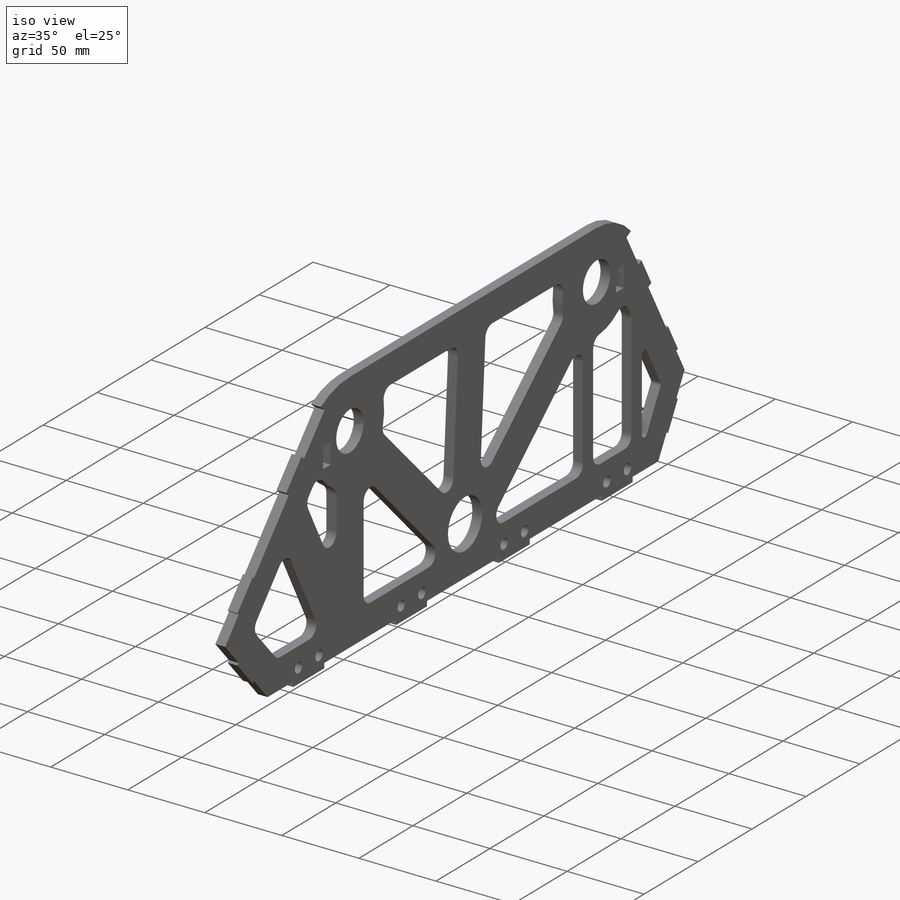
[diagram: iso view]
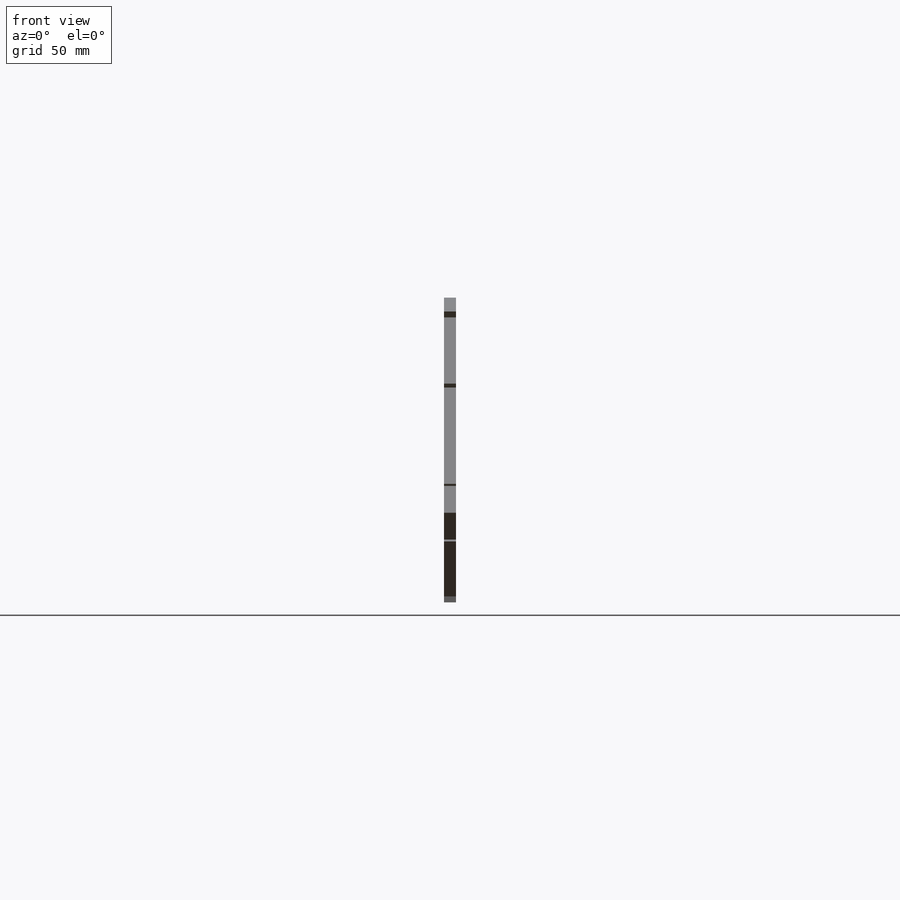
[diagram: front view]
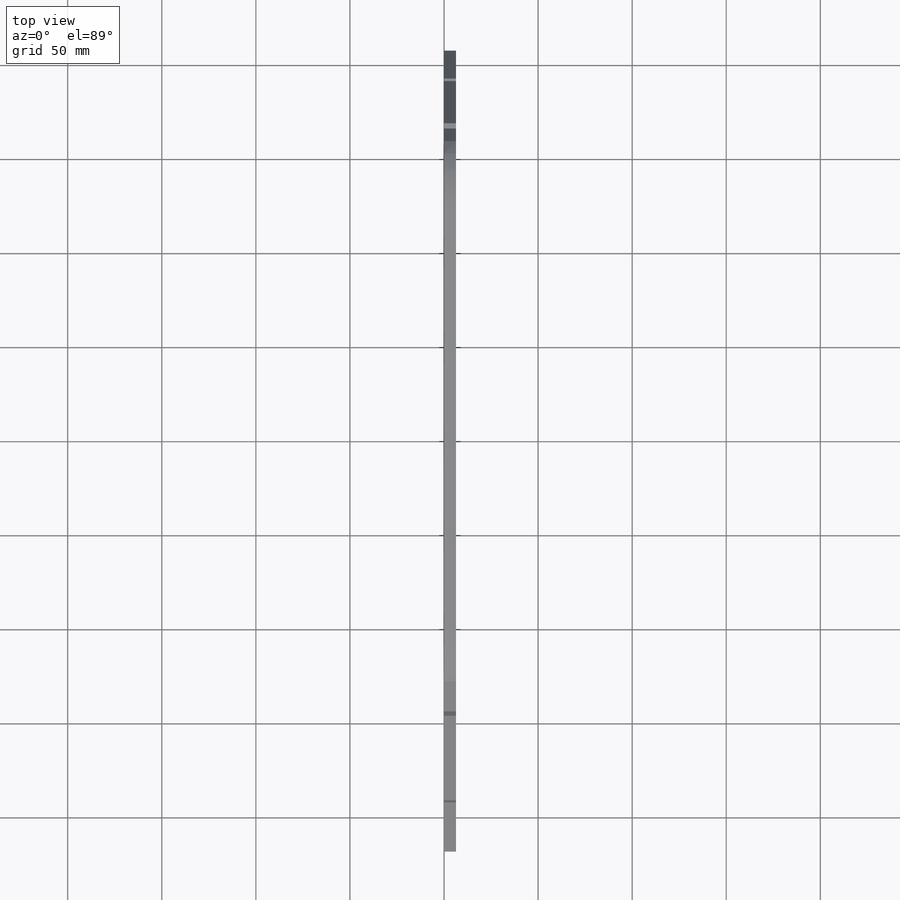
[diagram: top view]
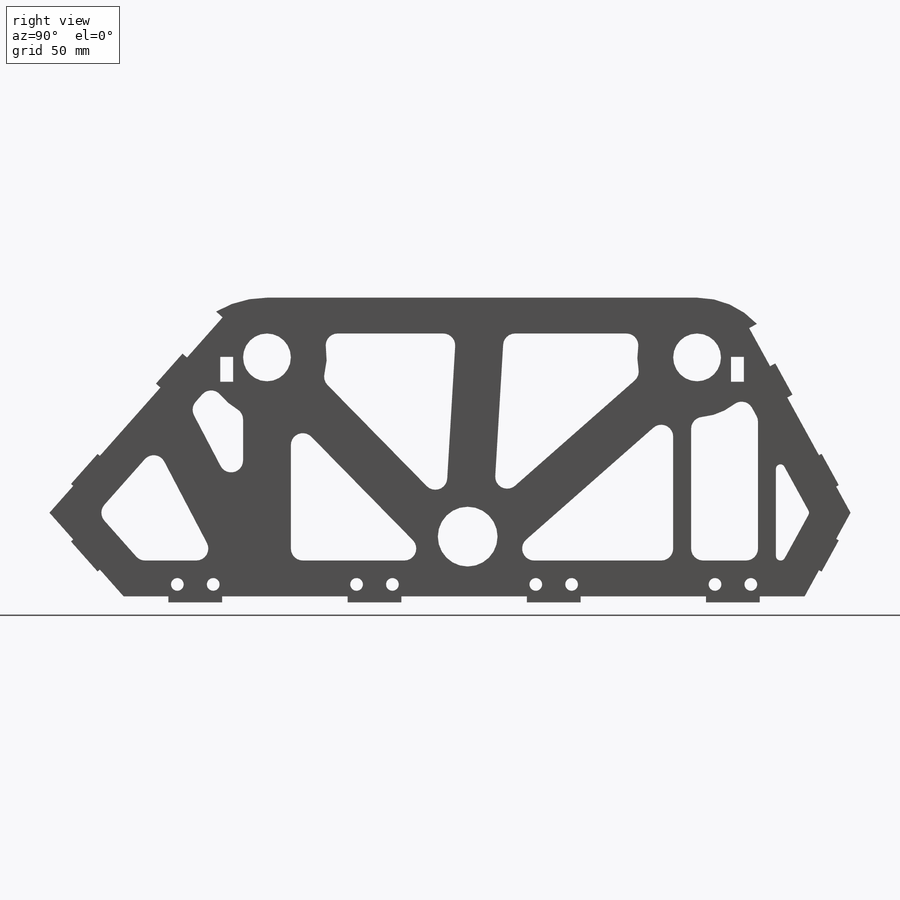
[diagram: right view]
SOLIDWORKS PART (.sldprt)
format: sldprt  version: not decoded by parser v0  size: 906,240 bytes
history: native  units: mm
features: sketch x17, extrude x8, cut_extrude x7, fillet x3, material x1, hole x1 (+13 scaffold rows collapsed)
feature tree (50):
  scaffold x13  (default folders/planes/origin — collapsed)
  material  "Plain Carbon Steel"
  sketch  "Sketch1"  dims[c1.D1=~9.285877mm c1.D3=~12.882042mm c1.D4=15.875mm c1.D5=101.6mm c1.D9=50.8mm c1.D10=67.31mm c1.D11=79.502mm c1.D12=46.736mm c2.D1=38.1mm c2.D2=50.8mm c2.D3=71.755mm c2.D6=254.0mm c2.D7=38.1mm c2.D8=38.1mm c3.D1=558.8mm c3.D2=88.9mm]
  extrude  "Boss-Extrude1"  Depth=6.35mm
  sketch  "Sketch2"  dims[c1.D1=25.4mm c1.D2=63.5mm c1.D3=127.0mm c1.D4=127.0mm c1.D5=76.2mm c1.D6=254.0mm c1.D7=196.85mm c2.D5=~79.056862mm c3.D5=45.0deg c4.D5=~58.544107mm c5.D5=45.0deg c6.D5=228.6mm]
  extrude  "Boss-Extrude2"  Depth=6.35mm
  sketch  "Sketch3"  dims[c1.D1=~58.544107mm c2.D1=45.0deg]
  extrude  "Boss-Extrude3"  Depth=6.35mm
  sketch  "Sketch4"
  cut_extrude  "Cut-Extrude1"  [1 undecoded]
  sketch  "Sketch5"  dims[c1.D1=~124.041153mm c1.D2=41.91mm c2.D1=19.05mm]
  cut_extrude  "Cut-Extrude2"  [1 undecoded]
  fillet  "Fillet1"  Radius=2.38125mm
  sketch  "Sketch6"  dims[c1.D4=~38.769922mm c1.D6=~20.378754mm c1.D1=19.05mm c1.D2=19.05mm c1.D3=19.05mm c2.D4=12.7mm c2.D5=12.7mm c2.D6=12.7mm c2.D7=12.7mm]
  cut_extrude  "Cut-Extrude3"  [1 undecoded]
  fillet  "Fillet2"  Radius=6.35mm
  sketch  "Sketch7"  dims[D1=~21.575944mm]
  extrude  "Boss-Extrude4"  [1 undecoded]
  sketch  "Sketch8"  dims[D1=88.9mm D2=69.85mm]
  extrude  "Boss-Extrude5"  [1 undecoded]
  sketch  "Sketch9"  dims[c1.D1=12.7mm c1.D2=6.35mm c2.D1=12.7mm c2.D2=6.35mm c3.D1=0.254mm]
  cut_extrude  "Cut-Extrude4"  [1 undecoded]
  sketch  "Sketch10"  dims[D1=~61.757651mm D2=31.75mm]
  cut_extrude  "Cut-Extrude5"  [1 undecoded]
  sketch  "Sketch11"  dims[D1=~3.038008mm]
  extrude  "Boss-Extrude6"  [1 undecoded]
  sketch  "Sketch12"  dims[D4=6.35mm D1=19.05mm D2=9.525mm D3=9.525mm]
  cut_extrude  "Cut-Extrude6"  [1 undecoded]
  fillet  "Fillet3"  Radius=6.35mm
  hole  "1/4 Clearance Hole1"  Diameter=6.7564mm Depth=6.35mm
  sketch  "Sketch14"  dims[D1=6.35mm D2=19.05mm D3=95.25mm]
  sketch  "Sketch13"  dims[hole-wizard template sketch: 61 standard entries collapsed; hole parameters above]
  sketch  "Sketch15"  dims[c1.D1=~10.943344mm c1.D2=~27.524982mm c2.D1=~10.943344mm c2.D2=~41.704518mm c3.D1=~10.943344mm c3.D2=~37.117021mm c4.D1=~10.943344mm c4.D2=~41.287473mm c5.D1=3.175mm c5.D2=28.575mm]
  extrude  "Boss-Extrude7"  [1 undecoded]
  sketch  "Sketch16"  dims[D2=1.5875mm D3=1.5875mm D4=1.5875mm D5=1.5875mm D6=1.5875mm D7=1.5875mm D1=0.0mm]
  cut_extrude  "Cut-Extrude7"  [1 undecoded]
  sketch  "Sketch17"  dims[c1.D1=~32.062062mm c1.D2=~24.948344mm c2.D1=0.3048mm c2.D2=0.3048mm c2.D3=4.7625mm]
  extrude  "Boss-Extrude8"  Depth=6.35mm
decode coverage: 24 of 36 modeling features carry decoded parameters
note: ~ marks probable driven/reference dimensions
note: 11 parameter values undecoded
summary: no parameter record found for 11 features
note: suppression state not decoded; provenance and decode notes live in map.json
